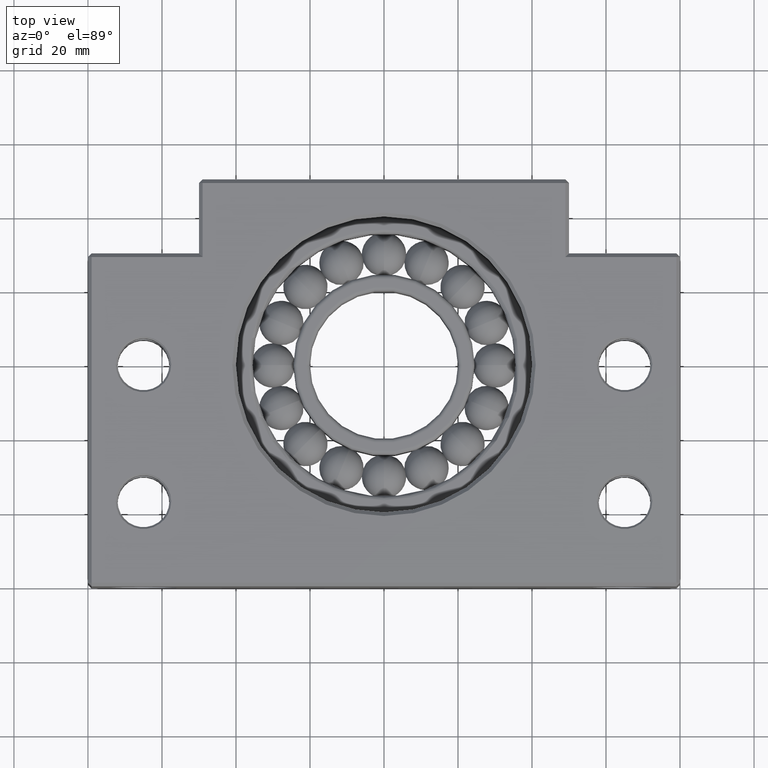
[diagram: clean part render]
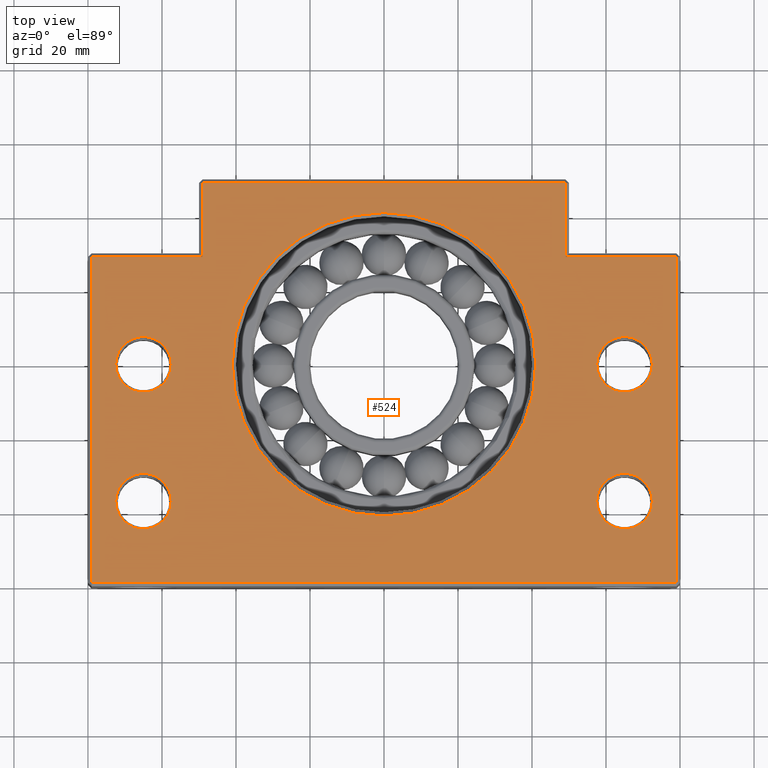
[diagram: same view with one face highlighted and labeled with its STEP entity id]
A machine part, top view. The second image highlights one B-rep face of the part: STEP entity #524.
In plain terms, the highlighted planar face has unit normal (-0, 0, 1).
Its self-contained STEP definition (entity closure, byte-faithful):
#444 = EDGE_LOOP ( 'NONE', ( #445, #446 ) ) ;
#445 = ORIENTED_EDGE ( 'NONE', *, *, #4858, .T. ) ;
#446 = ORIENTED_EDGE ( 'NONE', *, *, #447, .T. ) ;
#447 = EDGE_CURVE ( 'NONE', #4895, #4862, #1711, .T. ) ;
#448 = EDGE_LOOP ( 'NONE', ( #449, #450 ) ) ;
#449 = ORIENTED_EDGE ( 'NONE', *, *, #4946, .T. ) ;
#450 = ORIENTED_EDGE ( 'NONE', *, *, #508, .T. ) ;
#451 = EDGE_LOOP ( 'NONE', ( #509, #510 ) ) ;
#484 = ORIENTED_EDGE ( 'NONE', *, *, #485, .T. ) ;
#485 = EDGE_CURVE ( 'NONE', #566, #486, #1788, .T. ) ;
#486 = VERTEX_POINT ( 'NONE', #1845 ) ;
#487 = ORIENTED_EDGE ( 'NONE', *, *, #488, .T. ) ;
#488 = EDGE_CURVE ( 'NONE', #486, #496, #1844, .T. ) ;
#493 = EDGE_LOOP ( 'NONE', ( #494, #498, #501, #504, #507, #564, #484, #487 ) ) ;
#494 = ORIENTED_EDGE ( 'NONE', *, *, #495, .T. ) ;
#495 = EDGE_CURVE ( 'NONE', #496, #497, #1829, .T. ) ;
#496 = VERTEX_POINT ( 'NONE', #1825 ) ;
#497 = VERTEX_POINT ( 'NONE', #1897 ) ;
#498 = ORIENTED_EDGE ( 'NONE', *, *, #499, .T. ) ;
#499 = EDGE_CURVE ( 'NONE', #497, #500, #1896, .T. ) ;
#500 = VERTEX_POINT ( 'NONE', #1892 ) ;
#501 = ORIENTED_EDGE ( 'NONE', *, *, #502, .T. ) ;
#502 = EDGE_CURVE ( 'NONE', #500, #503, #1890, .T. ) ;
#503 = VERTEX_POINT ( 'NONE', #1886 ) ;
#504 = ORIENTED_EDGE ( 'NONE', *, *, #505, .T. ) ;
#505 = EDGE_CURVE ( 'NONE', #503, #506, #1885, .T. ) ;
#506 = VERTEX_POINT ( 'NONE', #1881 ) ;
#507 = ORIENTED_EDGE ( 'NONE', *, *, #562, .T. ) ;
#508 = EDGE_CURVE ( 'NONE', #4849, #4932, #1880, .T. ) ;
#509 = ORIENTED_EDGE ( 'NONE', *, *, #4864, .T. ) ;
#510 = ORIENTED_EDGE ( 'NONE', *, *, #511, .T. ) ;
#511 = EDGE_CURVE ( 'NONE', #4838, #4857, #1875, .T. ) ;
#512 = EDGE_LOOP ( 'NONE', ( #513, #514 ) ) ;
#513 = ORIENTED_EDGE ( 'NONE', *, *, #4908, .T. ) ;
#514 = ORIENTED_EDGE ( 'NONE', *, *, #515, .T. ) ;
#515 = EDGE_CURVE ( 'NONE', #4863, #4861, #1870, .T. ) ;
#516 = EDGE_LOOP ( 'NONE', ( #517, #518 ) ) ;
#517 = ORIENTED_EDGE ( 'NONE', *, *, #5121, .T. ) ;
#518 = ORIENTED_EDGE ( 'NONE', *, *, #519, .T. ) ;
#519 = EDGE_CURVE ( 'NONE', #5035, #5117, #1933, .T. ) ;
#524 = ADVANCED_FACE ( 'NONE', ( #1925, #1928, #1927, #1920, #1919, #1918 ), #1917, .T. ) ;
#562 = EDGE_CURVE ( 'NONE', #506, #563, #1975, .T. ) ;
#563 = VERTEX_POINT ( 'NONE', #1971 ) ;
#564 = ORIENTED_EDGE ( 'NONE', *, *, #565, .T. ) ;
#565 = EDGE_CURVE ( 'NONE', #563, #566, #1970, .T. ) ;
#566 = VERTEX_POINT ( 'NONE', #2028 ) ;
#1611 = DIRECTION ( 'NONE',  ( 1.000000000000000000, 0.0000000000000000000, 0.0000000000000000000 ) ) ;
#1707 = DIRECTION ( 'NONE',  ( 1.000000000000000000, 0.0000000000000000000, 0.0000000000000000000 ) ) ;
#1708 = DIRECTION ( 'NONE',  ( 0.0000000000000000000, -0.0000000000000000000, -1.000000000000000000 ) ) ;
#1709 = CARTESIAN_POINT ( 'NONE',  ( 65.00000000000000000, 23.00000000000001800, 18.50000000000000000 ) ) ;
#1710 = AXIS2_PLACEMENT_3D ( 'NONE', #1709, #1708, #1707 ) ;
#1711 = CIRCLE ( 'NONE', #1710, 7.500000000000034600 ) ;
#1786 = DIRECTION ( 'NONE',  ( -1.000000000000000000, 0.0000000000000000000, -0.0000000000000000000 ) ) ;
#1787 = CARTESIAN_POINT ( 'NONE',  ( 50.00000000000000700, 89.00000000000004300, 18.50000000000000000 ) ) ;
#1788 = LINE ( 'NONE', #1787, #1846 ) ;
#1825 = CARTESIAN_POINT ( 'NONE',  ( 49.00000000000004300, 109.0000000000000100, 18.50000000000000000 ) ) ;
#1826 = DIRECTION ( 'NONE',  ( -1.000000000000000000, -1.387778780781445700E-016, 0.0000000000000000000 ) ) ;
#1827 = VECTOR ( 'NONE', #1826, 1000.000000000000000 ) ;
#1828 = CARTESIAN_POINT ( 'NONE',  ( -49.99999999999999300, 109.0000000000000000, 18.50000000000000000 ) ) ;
#1829 = LINE ( 'NONE', #1828, #1827 ) ;
#1841 = DIRECTION ( 'NONE',  ( 0.0000000000000000000, 1.000000000000000000, 0.0000000000000000000 ) ) ;
#1842 = VECTOR ( 'NONE', #1841, 1000.000000000000000 ) ;
#1843 = CARTESIAN_POINT ( 'NONE',  ( 49.00000000000004300, 110.0000000000000000, 18.50000000000000000 ) ) ;
#1844 = LINE ( 'NONE', #1843, #1842 ) ;
#1845 = CARTESIAN_POINT ( 'NONE',  ( 49.00000000000004300, 89.00000000000004300, 18.50000000000000000 ) ) ;
#1846 = VECTOR ( 'NONE', #1786, 1000.000000000000000 ) ;
#1868 = CARTESIAN_POINT ( 'NONE',  ( -65.00000000000000000, 60.00000000000000000, 18.50000000000000000 ) ) ;
#1869 = AXIS2_PLACEMENT_3D ( 'NONE', #1868, #1935, #1934 ) ;
#1870 = CIRCLE ( 'NONE', #1869, 7.500000000000034600 ) ;
#1871 = DIRECTION ( 'NONE',  ( 1.000000000000000000, 0.0000000000000000000, 0.0000000000000000000 ) ) ;
#1872 = DIRECTION ( 'NONE',  ( 0.0000000000000000000, -0.0000000000000000000, -1.000000000000000000 ) ) ;
#1873 = CARTESIAN_POINT ( 'NONE',  ( -65.00000000000000000, 23.00000000000000000, 18.50000000000000000 ) ) ;
#1874 = AXIS2_PLACEMENT_3D ( 'NONE', #1873, #1872, #1871 ) ;
#1875 = CIRCLE ( 'NONE', #1874, 7.500000000000034600 ) ;
#1876 = DIRECTION ( 'NONE',  ( 1.000000000000000000, 0.0000000000000000000, 0.0000000000000000000 ) ) ;
#1877 = DIRECTION ( 'NONE',  ( 0.0000000000000000000, -0.0000000000000000000, -1.000000000000000000 ) ) ;
#1878 = CARTESIAN_POINT ( 'NONE',  ( 65.00000000000000000, 60.00000000000001400, 18.50000000000000000 ) ) ;
#1879 = AXIS2_PLACEMENT_3D ( 'NONE', #1878, #1877, #1876 ) ;
#1880 = CIRCLE ( 'NONE', #1879, 7.500000000000034600 ) ;
#1881 = CARTESIAN_POINT ( 'NONE',  ( -79.00000000000001400, 0.9999999999999731300, 18.50000000000000000 ) ) ;
#1882 = DIRECTION ( 'NONE',  ( 3.083952846180991300E-016, -1.000000000000000000, 0.0000000000000000000 ) ) ;
#1883 = VECTOR ( 'NONE', #1882, 1000.000000000000000 ) ;
#1884 = CARTESIAN_POINT ( 'NONE',  ( -79.00000000000001400, 3.083952846180907900E-016, 18.50000000000000000 ) ) ;
#1885 = LINE ( 'NONE', #1884, #1883 ) ;
#1886 = CARTESIAN_POINT ( 'NONE',  ( -79.00000000000004300, 89.00000000000002800, 18.50000000000000000 ) ) ;
#1887 = DIRECTION ( 'NONE',  ( -1.000000000000000000, 0.0000000000000000000, -0.0000000000000000000 ) ) ;
#1888 = VECTOR ( 'NONE', #1887, 1000.000000000000000 ) ;
#1889 = CARTESIAN_POINT ( 'NONE',  ( -80.00000000000001400, 89.00000000000002800, 18.50000000000000000 ) ) ;
#1890 = LINE ( 'NONE', #1889, #1888 ) ;
#1892 = CARTESIAN_POINT ( 'NONE',  ( -49.00000000000002100, 89.00000000000002800, 18.50000000000000000 ) ) ;
#1893 = DIRECTION ( 'NONE',  ( 0.0000000000000000000, -1.000000000000000000, 0.0000000000000000000 ) ) ;
#1894 = VECTOR ( 'NONE', #1893, 1000.000000000000000 ) ;
#1895 = CARTESIAN_POINT ( 'NONE',  ( -49.00000000000002100, 90.00000000000000000, 18.50000000000000000 ) ) ;
#1896 = LINE ( 'NONE', #1895, #1894 ) ;
#1897 = CARTESIAN_POINT ( 'NONE',  ( -49.00000000000002100, 109.0000000000000000, 18.50000000000000000 ) ) ;
#1913 = DIRECTION ( 'NONE',  ( -0.0000000000000000000, 0.0000000000000000000, 1.000000000000000000 ) ) ;
#1914 = CARTESIAN_POINT ( 'NONE',  ( -79.99999999999998600, 2.081334802647518600E-046, 18.50000000000000000 ) ) ;
#1915 = AXIS2_PLACEMENT_3D ( 'NONE', #1914, #1913, #1611 ) ;
#1917 = PLANE ( 'NONE',  #1915 ) ;
#1918 = FACE_OUTER_BOUND ( 'NONE', #493, .T. ) ;
#1919 = FACE_BOUND ( 'NONE', #516, .T. ) ;
#1920 = FACE_BOUND ( 'NONE', #512, .T. ) ;
#1925 = FACE_BOUND ( 'NONE', #444, .T. ) ;
#1927 = FACE_BOUND ( 'NONE', #451, .T. ) ;
#1928 = FACE_BOUND ( 'NONE', #448, .T. ) ;
#1929 = DIRECTION ( 'NONE',  ( 1.000000000000000000, 0.0000000000000000000, 0.0000000000000000000 ) ) ;
#1930 = DIRECTION ( 'NONE',  ( 0.0000000000000000000, -0.0000000000000000000, -1.000000000000000000 ) ) ;
#1931 = CARTESIAN_POINT ( 'NONE',  ( 9.776152770639777600E-015, 60.00000000000000000, 18.50000000000000000 ) ) ;
#1932 = AXIS2_PLACEMENT_3D ( 'NONE', #1931, #1930, #1929 ) ;
#1933 = CIRCLE ( 'NONE', #1932, 41.00000000000003600 ) ;
#1934 = DIRECTION ( 'NONE',  ( 1.000000000000000000, 0.0000000000000000000, 0.0000000000000000000 ) ) ;
#1935 = DIRECTION ( 'NONE',  ( 0.0000000000000000000, -0.0000000000000000000, -1.000000000000000000 ) ) ;
#1967 = DIRECTION ( 'NONE',  ( 0.0000000000000000000, 1.000000000000000000, 0.0000000000000000000 ) ) ;
#1968 = VECTOR ( 'NONE', #1967, 1000.000000000000000 ) ;
#1969 = CARTESIAN_POINT ( 'NONE',  ( 79.00000000000004300, 90.00000000000001400, 18.50000000000000000 ) ) ;
#1970 = LINE ( 'NONE', #1969, #1968 ) ;
#1971 = CARTESIAN_POINT ( 'NONE',  ( 79.00000000000004300, 0.9999999999999924500, 18.50000000000000000 ) ) ;
#1972 = DIRECTION ( 'NONE',  ( 1.000000000000000000, 1.224646799147353200E-016, 0.0000000000000000000 ) ) ;
#1973 = VECTOR ( 'NONE', #1972, 1000.000000000000000 ) ;
#1974 = CARTESIAN_POINT ( 'NONE',  ( 80.00000000000001400, 0.9999999999999926700, 18.50000000000000000 ) ) ;
#1975 = LINE ( 'NONE', #1974, #1973 ) ;
#2028 = CARTESIAN_POINT ( 'NONE',  ( 79.00000000000004300, 89.00000000000004300, 18.50000000000000000 ) ) ;
#3862 = CARTESIAN_POINT ( 'NONE',  ( -72.50000000000004300, 23.00000000000000000, 18.50000000000000000 ) ) ;
#3876 = DIRECTION ( 'NONE',  ( 1.000000000000000000, 0.0000000000000000000, 0.0000000000000000000 ) ) ;
#3877 = DIRECTION ( 'NONE',  ( 0.0000000000000000000, -0.0000000000000000000, -1.000000000000000000 ) ) ;
#3878 = CARTESIAN_POINT ( 'NONE',  ( 65.00000000000000000, 23.00000000000001800, 18.50000000000000000 ) ) ;
#3879 = AXIS2_PLACEMENT_3D ( 'NONE', #3878, #3877, #3876 ) ;
#3880 = CIRCLE ( 'NONE', #3879, 7.500000000000034600 ) ;
#3881 = CARTESIAN_POINT ( 'NONE',  ( -57.49999999999996400, 60.00000000000000000, 18.50000000000000000 ) ) ;
#3882 = CARTESIAN_POINT ( 'NONE',  ( -57.49999999999996400, 23.00000000000000000, 18.50000000000000000 ) ) ;
#3898 = CARTESIAN_POINT ( 'NONE',  ( 57.49999999999996400, 60.00000000000001400, 18.50000000000000000 ) ) ;
#3931 = DIRECTION ( 'NONE',  ( 1.000000000000000000, 0.0000000000000000000, 0.0000000000000000000 ) ) ;
#3932 = DIRECTION ( 'NONE',  ( 0.0000000000000000000, -0.0000000000000000000, -1.000000000000000000 ) ) ;
#3933 = CARTESIAN_POINT ( 'NONE',  ( -65.00000000000000000, 23.00000000000000000, 18.50000000000000000 ) ) ;
#3934 = AXIS2_PLACEMENT_3D ( 'NONE', #3933, #3932, #3931 ) ;
#3935 = CIRCLE ( 'NONE', #3934, 7.500000000000034600 ) ;
#3937 = CARTESIAN_POINT ( 'NONE',  ( -72.50000000000004300, 60.00000000000000000, 18.50000000000000000 ) ) ;
#3938 = CARTESIAN_POINT ( 'NONE',  ( 72.50000000000004300, 23.00000000000001800, 18.50000000000000000 ) ) ;
#3946 = CARTESIAN_POINT ( 'NONE',  ( 57.49999999999996400, 23.00000000000001800, 18.50000000000000000 ) ) ;
#3984 = DIRECTION ( 'NONE',  ( 1.000000000000000000, 0.0000000000000000000, 0.0000000000000000000 ) ) ;
#3985 = DIRECTION ( 'NONE',  ( 0.0000000000000000000, -0.0000000000000000000, -1.000000000000000000 ) ) ;
#3986 = AXIS2_PLACEMENT_3D ( 'NONE', #3993, #3985, #3984 ) ;
#3987 = CIRCLE ( 'NONE', #3986, 7.500000000000034600 ) ;
#3993 = CARTESIAN_POINT ( 'NONE',  ( -65.00000000000000000, 60.00000000000000000, 18.50000000000000000 ) ) ;
#4017 = CARTESIAN_POINT ( 'NONE',  ( 72.50000000000004300, 60.00000000000001400, 18.50000000000000000 ) ) ;
#4058 = DIRECTION ( 'NONE',  ( 1.000000000000000000, 0.0000000000000000000, 0.0000000000000000000 ) ) ;
#4059 = DIRECTION ( 'NONE',  ( 0.0000000000000000000, -0.0000000000000000000, -1.000000000000000000 ) ) ;
#4060 = CARTESIAN_POINT ( 'NONE',  ( 65.00000000000000000, 60.00000000000001400, 18.50000000000000000 ) ) ;
#4061 = AXIS2_PLACEMENT_3D ( 'NONE', #4060, #4059, #4058 ) ;
#4062 = CIRCLE ( 'NONE', #4061, 7.500000000000034600 ) ;
#4217 = CARTESIAN_POINT ( 'NONE',  ( -41.00000000000002800, 60.00000000000000700, 18.50000000000000000 ) ) ;
#4329 = DIRECTION ( 'NONE',  ( 1.000000000000000000, 0.0000000000000000000, 0.0000000000000000000 ) ) ;
#4330 = DIRECTION ( 'NONE',  ( 0.0000000000000000000, -0.0000000000000000000, -1.000000000000000000 ) ) ;
#4331 = CARTESIAN_POINT ( 'NONE',  ( 9.776152770639777600E-015, 60.00000000000000000, 18.50000000000000000 ) ) ;
#4332 = AXIS2_PLACEMENT_3D ( 'NONE', #4331, #4330, #4329 ) ;
#4333 = CIRCLE ( 'NONE', #4332, 41.00000000000003600 ) ;
#4339 = CARTESIAN_POINT ( 'NONE',  ( 41.00000000000004300, 60.00000000000000000, 18.50000000000000000 ) ) ;
#4838 = VERTEX_POINT ( 'NONE', #3862 ) ;
#4849 = VERTEX_POINT ( 'NONE', #3898 ) ;
#4857 = VERTEX_POINT ( 'NONE', #3882 ) ;
#4858 = EDGE_CURVE ( 'NONE', #4862, #4895, #3880, .T. ) ;
#4861 = VERTEX_POINT ( 'NONE', #3881 ) ;
#4862 = VERTEX_POINT ( 'NONE', #3938 ) ;
#4863 = VERTEX_POINT ( 'NONE', #3937 ) ;
#4864 = EDGE_CURVE ( 'NONE', #4857, #4838, #3935, .T. ) ;
#4895 = VERTEX_POINT ( 'NONE', #3946 ) ;
#4908 = EDGE_CURVE ( 'NONE', #4861, #4863, #3987, .T. ) ;
#4932 = VERTEX_POINT ( 'NONE', #4017 ) ;
#4946 = EDGE_CURVE ( 'NONE', #4932, #4849, #4062, .T. ) ;
#5035 = VERTEX_POINT ( 'NONE', #4217 ) ;
#5117 = VERTEX_POINT ( 'NONE', #4339 ) ;
#5121 = EDGE_CURVE ( 'NONE', #5117, #5035, #4333, .T. ) ;